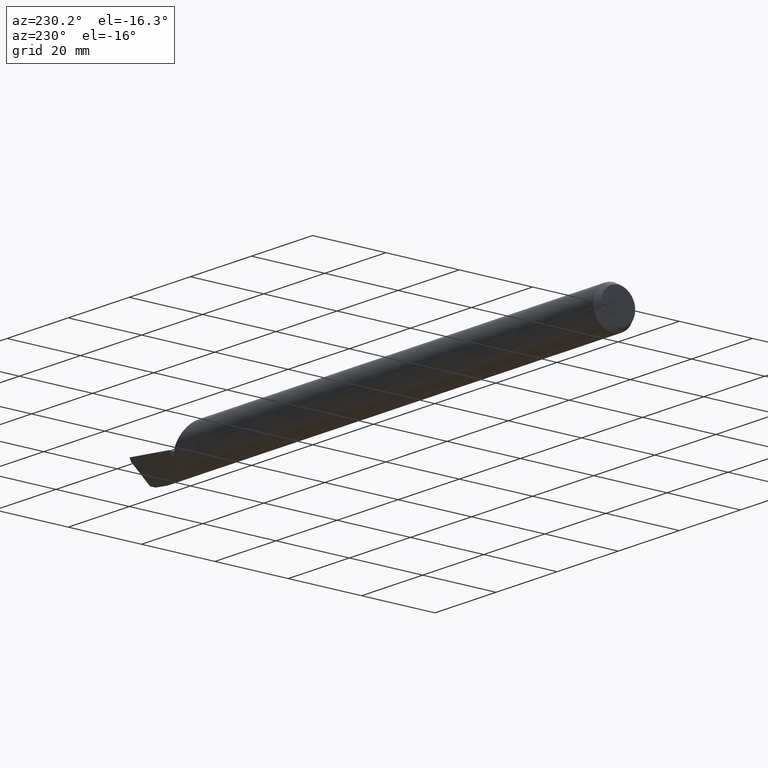
[diagram: clean part render]
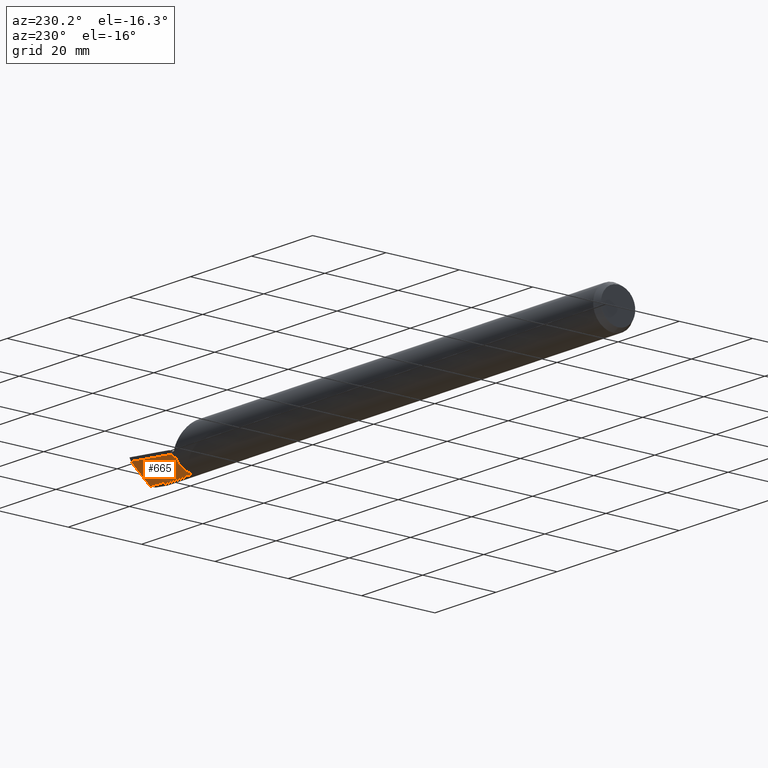
[diagram: same view with one face highlighted and labeled with its STEP entity id]
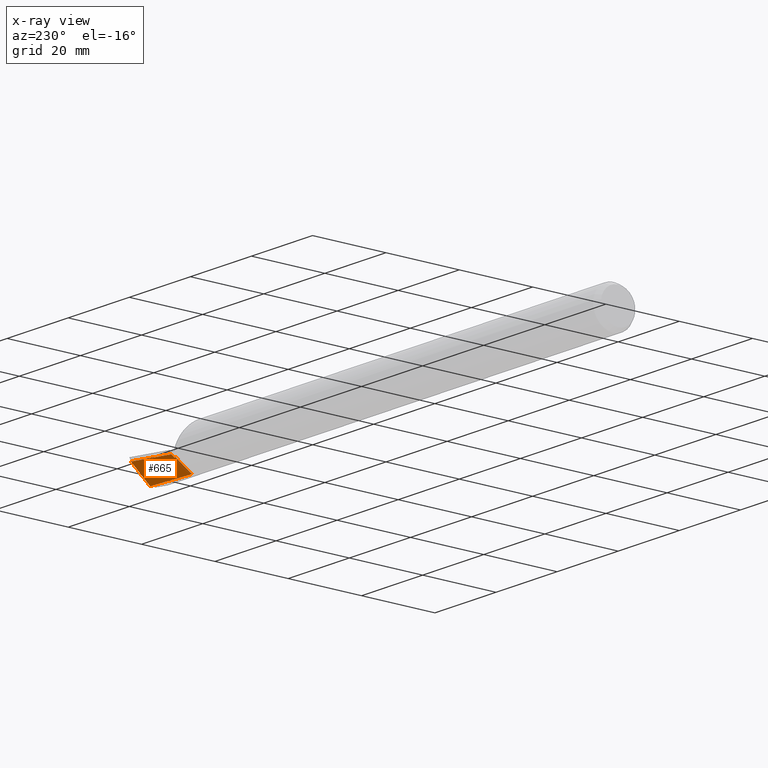
[diagram: x-ray of the same camera — body ghosted, the highlighted face saturated]
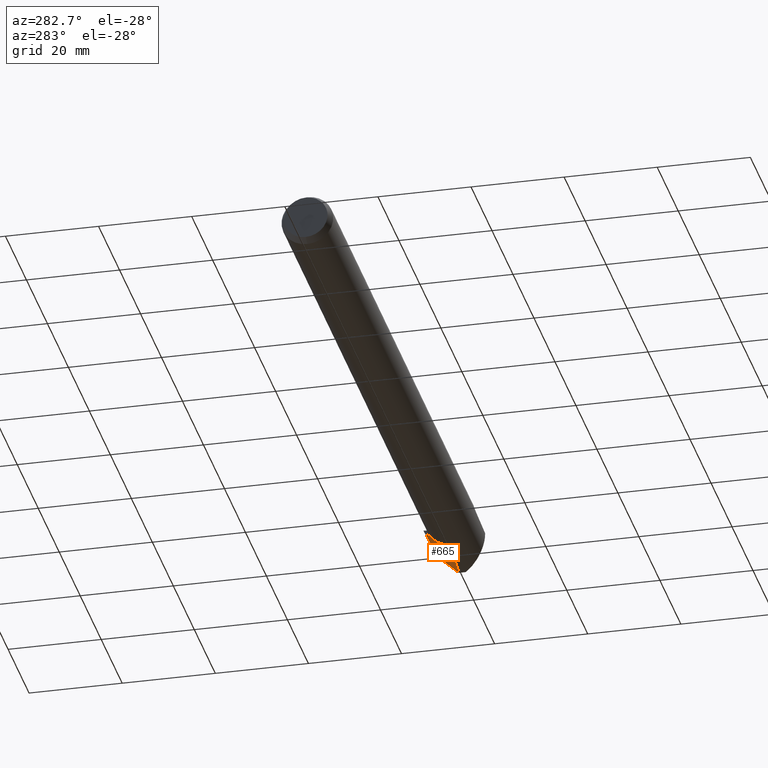
[diagram: same view with one face highlighted and labeled with its STEP entity id]
A machine part, auxiliary view. The second image highlights one B-rep face of the part: STEP entity #665.
The next image is the same camera in x-ray: the body ghosted, the highlighted face saturated — about 0% of this face is hidden behind the body in this view.
A second angle (auxiliary view) of the same face is appended — the face is thin or edge-on in the first view.
In plain terms, the highlighted face is a freeform B-spline surface patch.
Its self-contained STEP definition (entity closure, byte-faithful):
#2 = LINE ( 'NONE', #738, #360 ) ;
#13 = CARTESIAN_POINT ( 'NONE',  ( 5.490000000000001101, 0.2238405633532557781, -0.08433933223662058720 ) ) ;
#23 = CARTESIAN_POINT ( 'NONE',  ( 5.995650168487125953, 0.2365632825314394616, -0.03543351693485094489 ) ) ;
#38 = CARTESIAN_POINT ( 'NONE',  ( 5.482495906476938963, 0.1914835127187947128, -0.1055573765428616945 ) ) ;
#55 = ORIENTED_EDGE ( 'NONE', *, *, #347, .T. ) ;
#60 = VERTEX_POINT ( 'NONE', #536 ) ;
#68 =( BOUNDED_CURVE ( )  B_SPLINE_CURVE ( 1, ( #122, #13 ),
 .UNSPECIFIED., .F., .T. ) 
 B_SPLINE_CURVE_WITH_KNOTS ( ( 2, 2 ),
 ( 0.006884580001453515646, 0.007852015136062370088 ),
 .UNSPECIFIED. ) 
 CURVE ( )  GEOMETRIC_REPRESENTATION_ITEM ( )  RATIONAL_B_SPLINE_CURVE ( ( 0.9974221972044264861, 0.9974221972044265971 ) ) 
 REPRESENTATION_ITEM ( '' )  );
#71 = EDGE_LOOP ( 'NONE', ( #170, #589, #695, #409, #462, #166, #55, #403 ) ) ;
#76 = VERTEX_POINT ( 'NONE', #528 ) ;
#78 = CARTESIAN_POINT ( 'NONE',  ( 5.687500000000002665, -0.03374861584210742810, -0.2700840532099205715 ) ) ;
#82 = CARTESIAN_POINT ( 'NONE',  ( 5.650423596466452203, 0.02829228920356272742, -0.2186499999999998722 ) ) ;
#84 = B_SPLINE_CURVE_WITH_KNOTS ( 'NONE', 3,
 ( #255, #82, #605, #371 ),
 .UNSPECIFIED., .F., .F.,
 ( 4, 4 ),
 ( 0.0003823762464702322710, 0.01264710855387459094 ),
 .UNSPECIFIED. ) ;
#88 = CARTESIAN_POINT ( 'NONE',  ( 5.987540355590122765, 0.1753319710273809617, -0.09712830031008345966 ) ) ;
#102 = EDGE_CURVE ( 'NONE', #675, #223, #84, .T. ) ;
#122 = CARTESIAN_POINT ( 'NONE',  ( 5.489999999999998437, 0.1918135994642089504, -0.1049541116906446137 ) ) ;
#132 = CARTESIAN_POINT ( 'NONE',  ( 5.474996901347982892, 0.01471922584789439950, -0.2181539979772590399 ) ) ;
#138 = CARTESIAN_POINT ( 'NONE',  ( 5.482495906476937186, 0.01541270954320097045, -0.2181071841326581995 ) ) ;
#151 = EDGE_CURVE ( 'NONE', #385, #76, #581, .T. ) ;
#166 = ORIENTED_EDGE ( 'NONE', *, *, #240, .T. ) ;
#170 = ORIENTED_EDGE ( 'NONE', *, *, #522, .F. ) ;
#173 =( BOUNDED_CURVE ( )  B_SPLINE_CURVE ( 1, ( #587, #543 ),
 .UNSPECIFIED., .F., .F. ) 
 B_SPLINE_CURVE_WITH_KNOTS ( ( 2, 2 ),
 ( 0.001548922772798221568, 0.001576772748276450507 ),
 .UNSPECIFIED. ) 
 CURVE ( )  GEOMETRIC_REPRESENTATION_ITEM ( )  RATIONAL_B_SPLINE_CURVE ( ( 0.9974221972044267082, 0.9974221972044268192 ) ) 
 REPRESENTATION_ITEM ( '' )  );
#180 = VERTEX_POINT ( 'NONE', #243 ) ;
#190 = CARTESIAN_POINT ( 'NONE',  ( 5.743449343808144647, 0.2327994020812706732, -0.06056215194968579685 ) ) ;
#223 = VERTEX_POINT ( 'NONE', #426 ) ;
#240 = EDGE_CURVE ( 'NONE', #180, #60, #692, .T. ) ;
#243 = CARTESIAN_POINT ( 'NONE',  ( 5.474998967115993764, 0.1911388645456205126, -0.1061779492325103658 ) ) ;
#245 = CARTESIAN_POINT ( 'NONE',  ( 5.490000000000001101, 0.01609851000112820160, -0.2180565533886646701 ) ) ;
#250 = CARTESIAN_POINT ( 'NONE',  ( 6.000000000000000888, 0.001777810631851324845, -0.2698499999999999233 ) ) ;
#254 = CARTESIAN_POINT ( 'NONE',  ( 5.062500000000004441, -0.1025015563926100354, -0.2521463777385072325 ) ) ;
#255 = CARTESIAN_POINT ( 'NONE',  ( 5.490000000000001101, 0.01517653587899470483, -0.2186499999999620969 ) ) ;
#277 = EDGE_CURVE ( 'NONE', #180, #293, #2, .T. ) ;
#293 = VERTEX_POINT ( 'NONE', #690 ) ;
#301 = CARTESIAN_POINT ( 'NONE',  ( 4.750000000000003553, 0.1874256952490743477, -0.1486247944483796435 ) ) ;
#325 = DIRECTION ( 'NONE',  ( 0.000000000000000000, -0.8443279255020124108, -0.5358267949790007645 ) ) ;
#344 = CARTESIAN_POINT ( 'NONE',  ( 5.490000000000001101, 0.01609851000112820160, -0.2180565533886646701 ) ) ;
#345 =( BOUNDED_SURFACE ( )  B_SPLINE_SURFACE ( 1, 2, ( 
 ( #374, #704, #544, #602, #301 ),
 ( #250, #78, #425, #254, #485 ) ),
 .UNSPECIFIED., .F., .F., .T. ) 
 B_SPLINE_SURFACE_WITH_KNOTS ( ( 2, 2 ),
 ( 3, 2, 3 ),
 ( 0.000000000000000000, 1.000000000000000000 ),
 ( 0.000000000000000000, 0.5000000000000000000, 1.000000000000000000 ),
 .UNSPECIFIED. ) 
 GEOMETRIC_REPRESENTATION_ITEM ( )  RATIONAL_B_SPLINE_SURFACE ( (
 ( 1.000000000000000000, 0.9914448613738103822, 1.000000000000000000, 0.9914448613738103822, 1.000000000000000000),
 ( 1.000000000000000000, 0.9914448613738103822, 1.000000000000000000, 0.9914448613738103822, 1.000000000000000000) ) ) 
 REPRESENTATION_ITEM ( '' )  SURFACE ( )  );
#346 = VERTEX_POINT ( 'NONE', #344 ) ;
#347 = EDGE_CURVE ( 'NONE', #60, #76, #68, .T. ) ;
#355 = B_SPLINE_CURVE_WITH_KNOTS ( 'NONE', 3,
 ( #644, #601, #88, #23 ),
 .UNSPECIFIED., .F., .F.,
 ( 4, 4 ),
 ( 6.281806325062332000E-05, 0.006714991020778990523 ),
 .UNSPECIFIED. ) ;
#357 = CARTESIAN_POINT ( 'NONE',  ( 5.490000000000001101, 0.01517653587899470483, -0.2186499999999620969 ) ) ;
#360 = VECTOR ( 'NONE', #325, 39.37007874015748854 ) ;
#361 = FACE_OUTER_BOUND ( 'NONE', #71, .T. ) ;
#371 = CARTESIAN_POINT ( 'NONE',  ( 5.971533666062131651, 0.05098806548742233075, -0.2186499999999999277 ) ) ;
#374 = CARTESIAN_POINT ( 'NONE',  ( 6.000000000000000888, 0.2366278106318485952, -0.03500000000000001027 ) ) ;
#375 = CARTESIAN_POINT ( 'NONE',  ( 5.489999999999998437, 0.1918135994642089504, -0.1049541116906446137 ) ) ;
#385 = VERTEX_POINT ( 'NONE', #697 ) ;
#403 = ORIENTED_EDGE ( 'NONE', *, *, #151, .F. ) ;
#409 = ORIENTED_EDGE ( 'NONE', *, *, #470, .T. ) ;
#425 = CARTESIAN_POINT ( 'NONE',  ( 5.375000000000001776, -0.06812508611735872133, -0.2611152154742139020 ) ) ;
#426 = CARTESIAN_POINT ( 'NONE',  ( 5.971533666062131651, 0.05098806548742233075, -0.2186499999999999277 ) ) ;
#429 = CARTESIAN_POINT ( 'NONE',  ( 5.474998967115993764, 0.1911388645456205126, -0.1061779492325103658 ) ) ;
#462 = ORIENTED_EDGE ( 'NONE', *, *, #277, .F. ) ;
#470 = EDGE_CURVE ( 'NONE', #346, #293, #523, .T. ) ;
#485 = CARTESIAN_POINT ( 'NONE',  ( 4.750000000000003553, -0.1333853708296986462, -0.2345858605271563535 ) ) ;
#516 = EDGE_CURVE ( 'NONE', #675, #346, #173, .T. ) ;
#522 = EDGE_CURVE ( 'NONE', #223, #385, #355, .T. ) ;
#523 =( BOUNDED_CURVE ( )  B_SPLINE_CURVE ( 2, ( #245, #138, #132 ),
 .UNSPECIFIED., .F., .T. ) 
 B_SPLINE_CURVE_WITH_KNOTS ( ( 3, 3 ),
 ( 0.4075927071582991501, 0.4196108242066922678 ),
 .UNSPECIFIED. ) 
 CURVE ( )  GEOMETRIC_REPRESENTATION_ITEM ( )  RATIONAL_B_SPLINE_CURVE ( ( 0.9974221972044265971, 0.9975518224474398954, 0.9976913329914359752 ) ) 
 REPRESENTATION_ITEM ( '' )  );
#528 = CARTESIAN_POINT ( 'NONE',  ( 5.490000000000001101, 0.2238405633532557781, -0.08433933223662058720 ) ) ;
#536 = CARTESIAN_POINT ( 'NONE',  ( 5.489999999999998437, 0.1918135994642089504, -0.1049541116906446137 ) ) ;
#543 = CARTESIAN_POINT ( 'NONE',  ( 5.490000000000001101, 0.01609851000112820160, -0.2180565533886646701 ) ) ;
#544 = CARTESIAN_POINT ( 'NONE',  ( 5.375000000000001776, 0.2195062469289532914, -0.09505118791255254274 ) ) ;
#581 =( BOUNDED_CURVE ( )  B_SPLINE_CURVE ( 2, ( #712, #190, #721 ),
 .UNSPECIFIED., .F., .F. ) 
 B_SPLINE_CURVE_WITH_KNOTS ( ( 3, 3 ),
 ( 0.003509261759329716356, 0.4075927071582995387 ),
 .UNSPECIFIED. ) 
 CURVE ( )  GEOMETRIC_REPRESENTATION_ITEM ( )  RATIONAL_B_SPLINE_CURVE ( ( 0.9998807539633451924, 0.9930638260389135219, 0.9974221972044267082 ) ) 
 REPRESENTATION_ITEM ( '' )  );
#587 = CARTESIAN_POINT ( 'NONE',  ( 5.490000000000001101, 0.01517653587899470483, -0.2186499999999620969 ) ) ;
#589 = ORIENTED_EDGE ( 'NONE', *, *, #102, .F. ) ;
#601 = CARTESIAN_POINT ( 'NONE',  ( 5.979501768381283888, 0.1134645655244510831, -0.1581978106672396744 ) ) ;
#602 = CARTESIAN_POINT ( 'NONE',  ( 5.062500000000004441, 0.2069925206416169117, -0.1239497335567849440 ) ) ;
#605 = CARTESIAN_POINT ( 'NONE',  ( 5.810970655082823733, 0.03974745817720136409, -0.2186499999999998722 ) ) ;
#644 = CARTESIAN_POINT ( 'NONE',  ( 5.971533666062131651, 0.05098806548742233075, -0.2186499999999999277 ) ) ;
#665 = ADVANCED_FACE ( 'NONE', ( #361 ), #345, .T. ) ;
#675 = VERTEX_POINT ( 'NONE', #357 ) ;
#690 = CARTESIAN_POINT ( 'NONE',  ( 5.474996901347982892, 0.01471922584789439950, -0.2181539979772590399 ) ) ;
#692 =( BOUNDED_CURVE ( )  B_SPLINE_CURVE ( 2, ( #429, #38, #375 ),
 .UNSPECIFIED., .F., .T. ) 
 B_SPLINE_CURVE_WITH_KNOTS ( ( 3, 3 ),
 ( 0.5803891757933098416, 0.5924072928417043471 ),
 .UNSPECIFIED. ) 
 CURVE ( )  GEOMETRIC_REPRESENTATION_ITEM ( )  RATIONAL_B_SPLINE_CURVE ( ( 0.9976913329914360862, 0.9975518224474398954, 0.9974221972044265971 ) ) 
 REPRESENTATION_ITEM ( '' )  );
#695 = ORIENTED_EDGE ( 'NONE', *, *, #516, .T. ) ;
#697 = CARTESIAN_POINT ( 'NONE',  ( 5.995650168487125953, 0.2365632825314394616, -0.03543351693485094489 ) ) ;
#704 = CARTESIAN_POINT ( 'NONE',  ( 5.687500000000002665, 0.2320199732162897266, -0.06615264226832021088 ) ) ;
#712 = CARTESIAN_POINT ( 'NONE',  ( 5.995650168487125953, 0.2365632825314394616, -0.03543351693485094489 ) ) ;
#721 = CARTESIAN_POINT ( 'NONE',  ( 5.490000000000001101, 0.2238405633532557781, -0.08433933223662058720 ) ) ;
#738 = CARTESIAN_POINT ( 'NONE',  ( 5.474999999999999645, 0.2232940332876097167, -0.08577584428365504776 ) ) ;